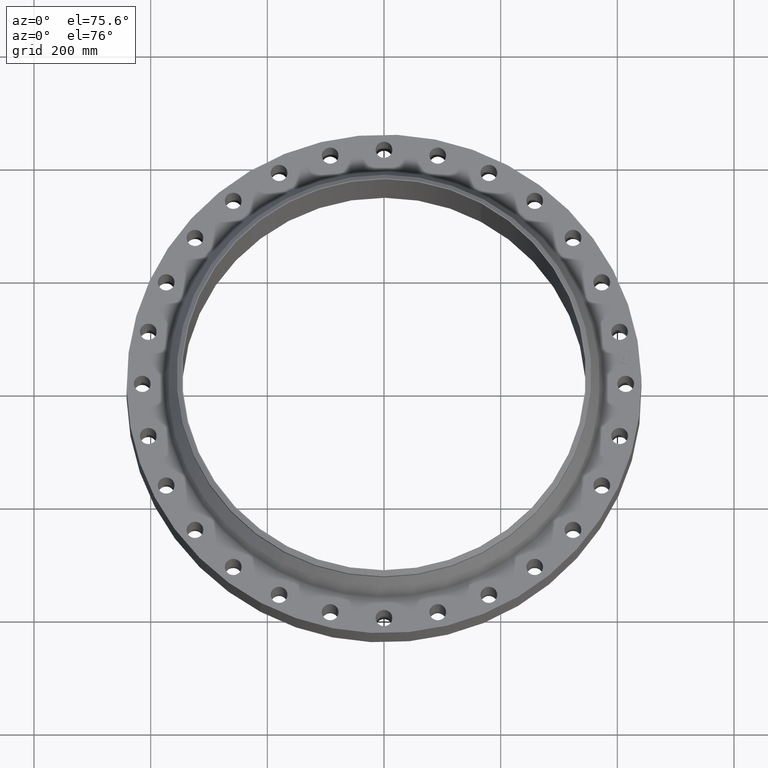
[diagram: clean part render]
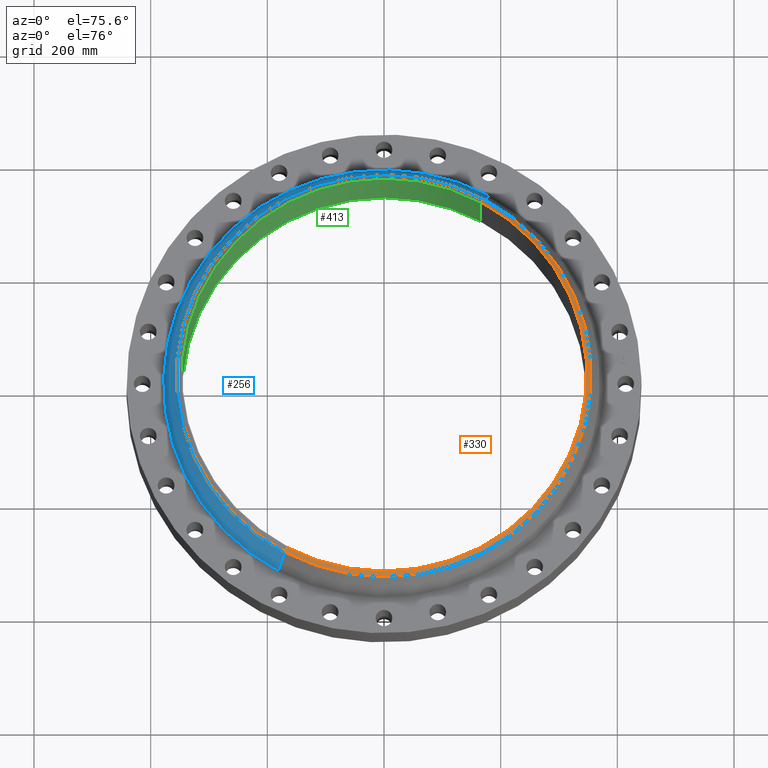
[diagram: same view with three faces highlighted in distinct colors, each labeled with its STEP entity id]
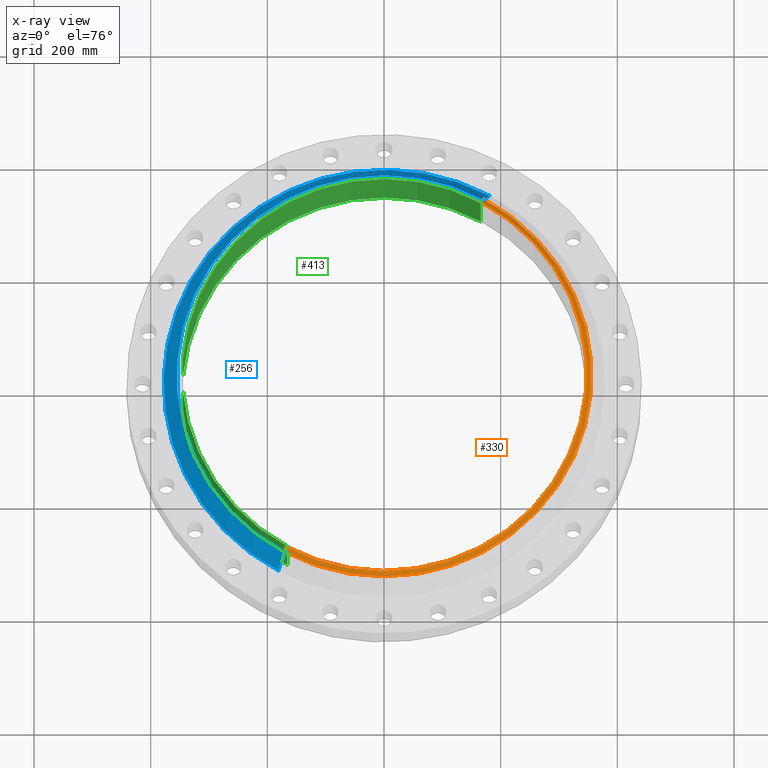
[diagram: x-ray of the same camera — body ghosted, the three highlighted faces saturated]
A machine part, auxiliary view with three faces highlighted in distinct colors.
The next image is the same camera in x-ray (body ghosted, the three faces saturated) — at least one of them is partly hidden behind the body in this view.
Their STEP definitions:

[orange] entity #330 — the highlighted conical surface has half-angle 52.5 deg.
#278=AXIS2_PLACEMENT_3D('Circle Axis2P3D',#276,#277,$) ;
#303=AXIS2_PLACEMENT_3D('Cone Axis2P3D',#300,#301,#302) ;
#314=AXIS2_PLACEMENT_3D('Circle Axis2P3D',#312,#313,$) ;
#266=CARTESIAN_POINT('Vertex',(-6.71195754049,-12.2861558665,4.76021031628)) ;
#273=CARTESIAN_POINT('Vertex',(6.71195754049,12.2861558665,4.76021031628)) ;
#276=CARTESIAN_POINT('Axis2P3D Location',(0.,0.,4.76021031628)) ;
#300=CARTESIAN_POINT('Axis2P3D Location',(0.,0.,5.00000000002)) ;
#305=CARTESIAN_POINT('Line Origine',(6.63704730008,12.1490335912,4.88010515815)) ;
#309=CARTESIAN_POINT('Vertex',(6.56213705967,12.0119113159,5.00000000002)) ;
#312=CARTESIAN_POINT('Axis2P3D Location',(0.,0.,5.00000000002)) ;
#316=CARTESIAN_POINT('Vertex',(-6.56213705967,-12.0119113159,5.00000000002)) ;
#319=CARTESIAN_POINT('Line Origine',(-6.63704730008,-12.1490335912,4.88010515815)) ;
#277=DIRECTION('Axis2P3D Direction',(0.,0.,-0.0393700787402)) ;
#301=DIRECTION('Axis2P3D Direction',(-0.,-0.,-0.0393700787402)) ;
#302=DIRECTION('Axis2P3D XDirection',(-0.0188750212049,-0.0345504945626,0.)) ;
#306=DIRECTION('Vector Direction',(0.014974561121,0.02741075027,-0.023966985394)) ;
#313=DIRECTION('Axis2P3D Direction',(0.,-0.,-0.0393700787402)) ;
#320=DIRECTION('Vector Direction',(-0.014974561121,-0.02741075027,-0.023966985394)) ;
#307=VECTOR('Line Direction',#306,0.0393700787402) ;
#321=VECTOR('Line Direction',#320,0.0393700787402) ;
#325=ORIENTED_EDGE('',*,*,#311,.F.) ;
#326=ORIENTED_EDGE('',*,*,#318,.T.) ;
#327=ORIENTED_EDGE('',*,*,#323,.T.) ;
#328=ORIENTED_EDGE('',*,*,#280,.F.) ;
#330=ADVANCED_FACE('PartBody',(#329),#304,.T.) ;
#279=CIRCLE('generated circle',#278,14.0000000001) ;
#315=CIRCLE('generated circle',#314,13.6875000001) ;
#304=CONICAL_SURFACE('Cone',#303,13.6875000001,0.916297857297) ;
#280=EDGE_CURVE('',#274,#267,#279,.T.) ;
#311=EDGE_CURVE('',#310,#274,#308,.T.) ;
#318=EDGE_CURVE('',#310,#317,#315,.T.) ;
#323=EDGE_CURVE('',#317,#267,#322,.T.) ;
#324=EDGE_LOOP('',(#325,#326,#327,#328)) ;
#329=FACE_OUTER_BOUND('',#324,.T.) ;
#308=LINE('Line',#305,#307) ;
#322=LINE('Line',#319,#321) ;
#267=VERTEX_POINT('',#266) ;
#274=VERTEX_POINT('',#273) ;
#310=VERTEX_POINT('',#309) ;
#317=VERTEX_POINT('',#316) ;

[blue] entity #256 — the highlighted conical surface has half-angle 24.912 deg.
#204=AXIS2_PLACEMENT_3D('Circle Axis2P3D',#202,#203,$) ;
#217=AXIS2_PLACEMENT_3D('Cone Axis2P3D',#214,#215,#216) ;
#247=AXIS2_PLACEMENT_3D('Circle Axis2P3D',#245,#246,$) ;
#175=CARTESIAN_POINT('Vertex',(7.13039977961,13.0521092475,2.64469540812)) ;
#182=CARTESIAN_POINT('Vertex',(-7.13039977961,-13.0521092475,2.64469540812)) ;
#202=CARTESIAN_POINT('Axis2P3D Location',(0.,0.,2.64469540812)) ;
#214=CARTESIAN_POINT('Axis2P3D Location',(0.,0.,4.52398984383)) ;
#219=CARTESIAN_POINT('Line Origine',(6.92117866005,12.669132557,3.58434262598)) ;
#223=CARTESIAN_POINT('Vertex',(6.71195754049,12.2861558665,4.52398984383)) ;
#230=CARTESIAN_POINT('Vertex',(-6.71195754049,-12.2861558665,4.52398984383)) ;
#233=CARTESIAN_POINT('Line Origine',(-6.92117866005,-12.669132557,3.58434262598)) ;
#245=CARTESIAN_POINT('Axis2P3D Location',(0.,0.,4.52398984383)) ;
#203=DIRECTION('Axis2P3D Direction',(0.,0.,-0.0393700787402)) ;
#215=DIRECTION('Axis2P3D Direction',(0.,0.,-0.0393700787402)) ;
#216=DIRECTION('Axis2P3D XDirection',(-0.0188750212049,-0.0345504945626,0.)) ;
#220=DIRECTION('Vector Direction',(0.00795050561934,0.0145533029176,-0.0357070572099)) ;
#234=DIRECTION('Vector Direction',(-0.00795050561934,-0.0145533029176,-0.0357070572099)) ;
#246=DIRECTION('Axis2P3D Direction',(0.,0.,-0.0393700787402)) ;
#221=VECTOR('Line Direction',#220,0.0393700787402) ;
#235=VECTOR('Line Direction',#234,0.0393700787402) ;
#251=ORIENTED_EDGE('',*,*,#206,.F.) ;
#252=ORIENTED_EDGE('',*,*,#237,.T.) ;
#253=ORIENTED_EDGE('',*,*,#249,.T.) ;
#254=ORIENTED_EDGE('',*,*,#225,.F.) ;
#256=ADVANCED_FACE('PartBody',(#255),#218,.T.) ;
#205=CIRCLE('generated circle',#204,14.8727992263) ;
#248=CIRCLE('generated circle',#247,14.0000000001) ;
#218=CONICAL_SURFACE('Cone',#217,14.0000000001,0.434788255907) ;
#206=EDGE_CURVE('',#183,#176,#205,.T.) ;
#225=EDGE_CURVE('',#176,#224,#222,.F.) ;
#237=EDGE_CURVE('',#183,#231,#236,.F.) ;
#249=EDGE_CURVE('',#231,#224,#248,.T.) ;
#250=EDGE_LOOP('',(#251,#252,#253,#254)) ;
#255=FACE_OUTER_BOUND('',#250,.T.) ;
#222=LINE('Line',#219,#221) ;
#236=LINE('Line',#233,#235) ;
#176=VERTEX_POINT('',#175) ;
#183=VERTEX_POINT('',#182) ;
#224=VERTEX_POINT('',#223) ;
#231=VERTEX_POINT('',#230) ;

[green] entity #413 — the highlighted cylindrical surface (partial cylindrical patch) has radius 346.075 mm, axis along (0, 0, -1).
#354=AXIS2_PLACEMENT_3D('Circle Axis2P3D',#352,#353,$) ;
#374=AXIS2_PLACEMENT_3D('Cylinder Axis2P3D',#371,#372,#373) ;
#404=AXIS2_PLACEMENT_3D('Circle Axis2P3D',#402,#403,$) ;
#352=CARTESIAN_POINT('Axis2P3D Location',(2.23792987641E-015,1.1189649382E-015,5.00000000002)) ;
#356=CARTESIAN_POINT('Vertex',(-6.53217296351,-11.9570624058,5.00000000002)) ;
#358=CARTESIAN_POINT('Vertex',(6.53217296351,11.9570624058,5.00000000002)) ;
#371=CARTESIAN_POINT('Axis2P3D Location',(0.,0.,2.51875000001)) ;
#376=CARTESIAN_POINT('Line Origine',(6.53217296351,11.9570624058,2.46875000001)) ;
#380=CARTESIAN_POINT('Vertex',(6.53217296351,11.9570624058,-0.0625000000003)) ;
#387=CARTESIAN_POINT('Vertex',(-6.53217296351,-11.9570624058,-0.0625000000003)) ;
#390=CARTESIAN_POINT('Line Origine',(-6.53217296351,-11.9570624058,2.46875000001)) ;
#402=CARTESIAN_POINT('Axis2P3D Location',(0.,0.,-0.0625000000003)) ;
#353=DIRECTION('Axis2P3D Direction',(0.,-0.,-0.0393700787402)) ;
#372=DIRECTION('Axis2P3D Direction',(0.,0.,-0.0393700787402)) ;
#373=DIRECTION('Axis2P3D XDirection',(-0.0188750212049,-0.0345504945626,0.)) ;
#377=DIRECTION('Vector Direction',(0.,0.,-0.0393700787402)) ;
#391=DIRECTION('Vector Direction',(0.,0.,-0.0393700787402)) ;
#403=DIRECTION('Axis2P3D Direction',(0.,0.,-0.0393700787402)) ;
#378=VECTOR('Line Direction',#377,0.0393700787402) ;
#392=VECTOR('Line Direction',#391,0.0393700787402) ;
#408=ORIENTED_EDGE('',*,*,#394,.T.) ;
#409=ORIENTED_EDGE('',*,*,#406,.T.) ;
#410=ORIENTED_EDGE('',*,*,#382,.F.) ;
#411=ORIENTED_EDGE('',*,*,#360,.F.) ;
#413=ADVANCED_FACE('PartBody',(#412),#375,.F.) ;
#355=CIRCLE('generated circle',#354,13.6250000001) ;
#405=CIRCLE('generated circle',#404,13.6250000001) ;
#375=CYLINDRICAL_SURFACE('generated cylinder',#374,13.6250000001) ;
#360=EDGE_CURVE('',#357,#359,#355,.T.) ;
#382=EDGE_CURVE('',#359,#381,#379,.T.) ;
#394=EDGE_CURVE('',#357,#388,#393,.T.) ;
#406=EDGE_CURVE('',#388,#381,#405,.T.) ;
#407=EDGE_LOOP('',(#408,#409,#410,#411)) ;
#412=FACE_OUTER_BOUND('',#407,.T.) ;
#379=LINE('Line',#376,#378) ;
#393=LINE('Line',#390,#392) ;
#357=VERTEX_POINT('',#356) ;
#359=VERTEX_POINT('',#358) ;
#381=VERTEX_POINT('',#380) ;
#388=VERTEX_POINT('',#387) ;